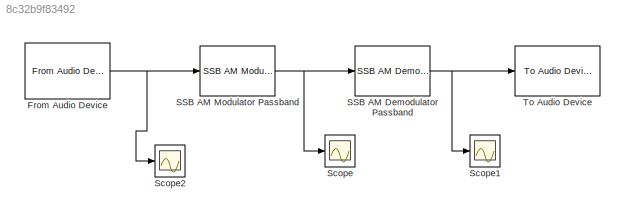
MODEL slx_8c32b9f83492
KIND model
CONFIG AbsTol = auto
CONFIG FixedStep = auto
CONFIG MaxStep = auto
CONFIG MinStep = auto
CONFIG RelTol = 1e-3
CONFIG SampleTimeConstraint = Unconstrained
CONFIG Solver = VariableStepAuto
CONFIG SolverMode = Auto
CONFIG SolverName = VariableStepAuto
CONFIG StartTime = 0.0
CONFIG StopTime = 10.0
BLOCK [Reference] From Audio Device  REF=dspsrcs4/From Audio
Device
  Ports = [0, 1]
  SourceBlock = dspsrcs4/From Audio\nDevice
  SourceType = From Audio Device
BLOCK [Reference] SSB AM Demodulator Passband  REF=commanapbnd3/SSB AM
Demodulator
Passband
  Ports = [1, 1]
  SourceBlock = commanapbnd3/SSB AM\nDemodulator\nPassband
  SourceType = SSB AM Demodulator Passband
BLOCK [Reference] SSB AM Modulator Passband  REF=commanapbnd3/SSB AM
Modulator
Passband
  Ports = [1, 1]
  SourceBlock = commanapbnd3/SSB AM\nModulator\nPassband
  SourceType = SSB AM Modulator Passband
BLOCK [Scope] Scope
  Ports = [1]
  ScopeSpecificationString = C++SS(StrPVP('SaveName','ScopeData'))
BLOCK [Scope] Scope1
  Ports = [1]
  ScopeSpecificationString = C++SS(StrPVP('SaveName','ScopeData'),StrPVP('SaveName','ScopeData1'))
BLOCK [Scope] Scope2
  Ports = [1]
  ScopeSpecificationString = C++SS(StrPVP('SaveName','ScopeData'),StrPVP('SaveName','ScopeData2'))
BLOCK [Reference] To Audio Device  REF=dspsnks4/To Audio
Device
  Ports = [1]
  SourceBlock = dspsnks4/To Audio\nDevice
  SourceType = To Audio Device
NET From Audio Device:1 -> SSB AM Modulator Passband:1, Scope2:1
NET SSB AM Demodulator Passband:1 -> Scope1:1, To Audio Device:1
NET SSB AM Modulator Passband:1 -> SSB AM Demodulator Passband:1, Scope:1
note: NET lines group one-source signal fan-out (src -> all destinations, sorted); 1:1 wires keep LINE
